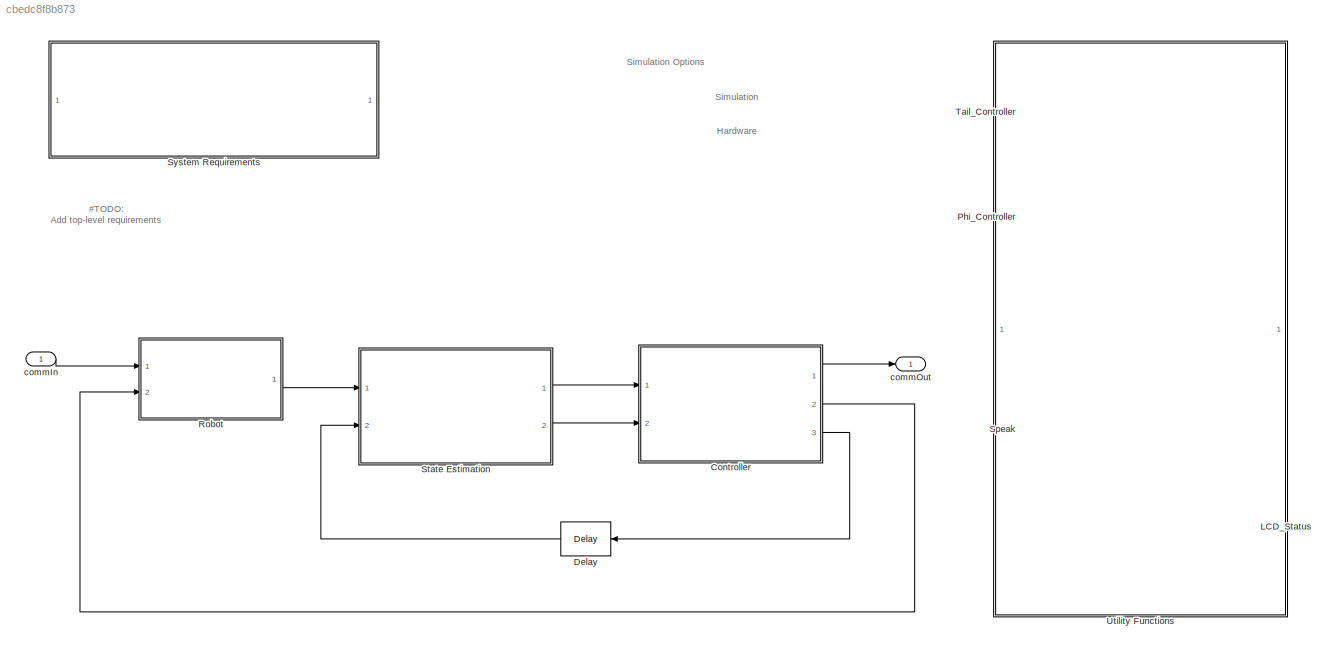
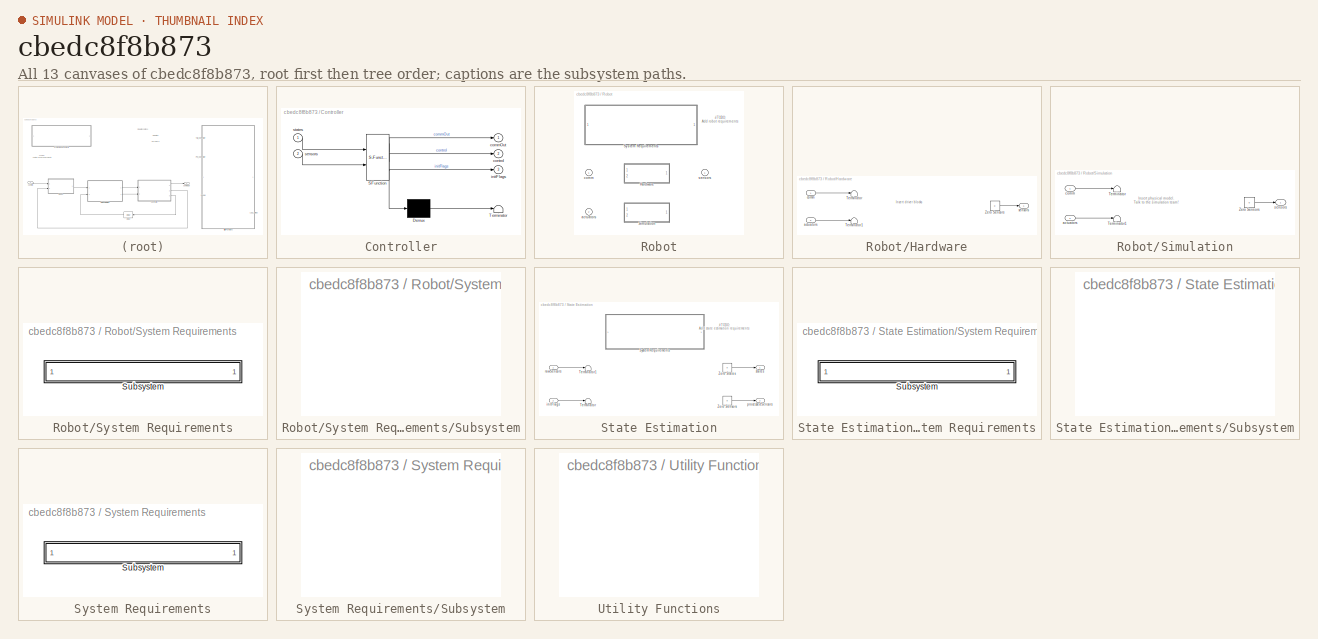
[diagram: thumbnail index - all 13 canvases of the model, root first then tree order]
MODEL slx_cbedc8f8b873
KIND model
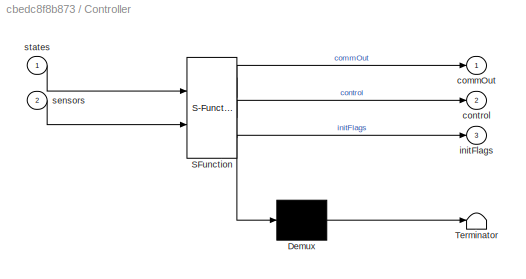
BLOCK [SubSystem] Controller
  ErrorFcn = Stateflow.Translate.translate
  PermitHierarchicalResolution = ExplicitOnly
  Ports = [2, 3]
  RequestExecContextInheritance = off
  SFBlockType = Chart
  TreatAsAtomicUnit = on
BLOCK [Demux] Controller/ Demux 
  Outputs = 1
  Ports = [1, 1]
BLOCK [S-Function] Controller/ SFunction 
  EnableBusSupport = on
  FunctionName = sf_sfun
  PortCounts = [2 4]
  Ports = [2, 4]
  Tag = Stateflow S-Function RobotTemplate 5
BLOCK [Terminator] Controller/ Terminator 
BLOCK [Outport] Controller/commOut
  IconDisplay = Port number
BLOCK [Outport] Controller/control
  IconDisplay = Port number
  Port = 2
BLOCK [Outport] Controller/initFlags
  IconDisplay = Port number
  Port = 3
BLOCK [Inport] Controller/sensors
  IconDisplay = Port number
  Port = 2
BLOCK [Inport] Controller/states
  IconDisplay = Port number
BLOCK [Delay] Delay
  AttributesFormatString = Removes algebraic loop
  DelayLength = 1
  InputPortMap = u0
  Ports = [1, 1]
  SampleTime = tModel
BLOCK [Reference] LCD_Status  REF=NXTFcns/LCD_Status
  Commented = on
  Ports = [0, 0, 0, 1]
  SourceBlock = NXTFcns/LCD_Status
  SourceType = SubSystem
BLOCK [Reference] Phi_Controller  REF=ControllersFcns/Phi_Controller
  Commented = on
  Ports = [0, 0, 0, 1]
  SourceBlock = ControllersFcns/Phi_Controller
  SourceType = SubSystem
BLOCK [SubSystem] Robot
  OverrideUsingVariant = SimulationVar
  Ports = [2, 1]
  RequestExecContextInheritance = off
  Variant = on
  VariantControl = Variant1
BLOCK [SubSystem] Robot/Hardware
  Ports = [2, 1]
  RequestExecContextInheritance = off
  VariantControl = HardwareVar
BLOCK [Terminator] Robot/Hardware/Terminator
BLOCK [Terminator] Robot/Hardware/Terminator1
BLOCK [Constant] Robot/Hardware/Zero Sensors
  OutDataTypeStr = Bus: SensorsBus
  Value = 0
BLOCK [Inport] Robot/Hardware/actuators
  IconDisplay = Port number
  Port = 2
BLOCK [Inport] Robot/Hardware/comm
  IconDisplay = Port number
BLOCK [Outport] Robot/Hardware/sensors
  IconDisplay = Port number
BLOCK [SubSystem] Robot/Simulation
  Ports = [2, 1]
  RequestExecContextInheritance = off
  VariantControl = SimulationVar
BLOCK [Terminator] Robot/Simulation/Terminator
BLOCK [Terminator] Robot/Simulation/Terminator1
BLOCK [Constant] Robot/Simulation/Zero Sensors
  OutDataTypeStr = Bus: SensorsBus
  Value = 0
BLOCK [Inport] Robot/Simulation/actuators
  IconDisplay = Port number
  Port = 2
BLOCK [Inport] Robot/Simulation/comm
  IconDisplay = Port number
BLOCK [Outport] Robot/Simulation/sensors
  IconDisplay = Port number
BLOCK [SubSystem] Robot/System Requirements
  CopyFcn = rmidispblock('create',gcbh)
  DeleteFcn = rmidispblock('delete',gcbh)
  LoadFcn = rmidispblock('load',gcbh)
  ModelCloseFcn = rmidispblock('close',gcbh)
  MoveFcn = rmidispblock('move',gcbh)
  OpenFcn = rmidispblock('open',gcbh)
  Ports = []
  PostSaveFcn = rmidispblock('open',gcbh)
  PreSaveFcn = rmidispblock('close',gcbh)
  RequestExecContextInheritance = off
  VariantControl = Variant
BLOCK [SubSystem] Robot/System Requirements/Subsystem
  OpenFcn = rmidispblock('openReq',gcbh);
  Ports = []
  RequestExecContextInheritance = off
BLOCK [Inport] Robot/actuators
  IconDisplay = Port number
  OutDataTypeStr = Bus: ControlBus
  Port = 2
BLOCK [Inport] Robot/comm
  IconDisplay = Port number
  OutDataTypeStr = Enum: Comm
BLOCK [Outport] Robot/sensors
  IconDisplay = Port number
  OutDataTypeStr = Bus: SensorsBus
BLOCK [Reference] Speak  REF=NXTFcns/Speak
  Commented = on
  Ports = [0, 0, 0, 1]
  SourceBlock = NXTFcns/Speak
  SourceType = SubSystem
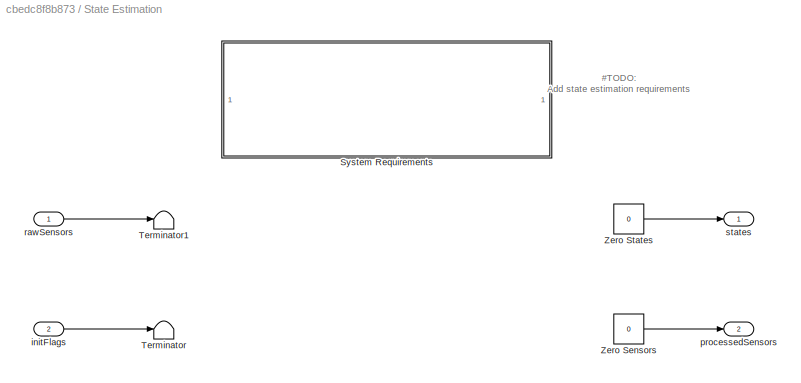
BLOCK [SubSystem] State Estimation
  Ports = [2, 2]
  RequestExecContextInheritance = off
BLOCK [SubSystem] State Estimation/System Requirements
  CopyFcn = rmidispblock('create',gcbh)
  DeleteFcn = rmidispblock('delete',gcbh)
  LoadFcn = rmidispblock('load',gcbh)
  ModelCloseFcn = rmidispblock('close',gcbh)
  MoveFcn = rmidispblock('move',gcbh)
  OpenFcn = rmidispblock('open',gcbh)
  Ports = []
  PostSaveFcn = rmidispblock('open',gcbh)
  PreSaveFcn = rmidispblock('close',gcbh)
  RequestExecContextInheritance = off
BLOCK [SubSystem] State Estimation/System Requirements/Subsystem
  OpenFcn = rmidispblock('openReq',gcbh);
  Ports = []
  RequestExecContextInheritance = off
BLOCK [Terminator] State Estimation/Terminator
BLOCK [Terminator] State Estimation/Terminator1
BLOCK [Constant] State Estimation/Zero Sensors
  OutDataTypeStr = Bus: SensorsBus
  Value = 0
BLOCK [Constant] State Estimation/Zero States
  OutDataTypeStr = Bus: StatesBus
  Value = 0
BLOCK [Inport] State Estimation/initFlags
  IconDisplay = Port number
  OutDataTypeStr = Bus: InitBus
  Port = 2
BLOCK [Outport] State Estimation/processedSensors
  IconDisplay = Port number
  OutDataTypeStr = Bus: SensorsBus
  Port = 2
BLOCK [Inport] State Estimation/rawSensors
  IconDisplay = Port number
  OutDataTypeStr = Bus: SensorsBus
BLOCK [Outport] State Estimation/states
  IconDisplay = Port number
  OutDataTypeStr = Bus: StatesBus
BLOCK [SubSystem] System Requirements
  CopyFcn = rmidispblock('create',gcbh)
  DeleteFcn = rmidispblock('delete',gcbh)
  LoadFcn = rmidispblock('load',gcbh)
  ModelCloseFcn = rmidispblock('close',gcbh)
  MoveFcn = rmidispblock('move',gcbh)
  OpenFcn = rmidispblock('open',gcbh)
  Ports = []
  PostSaveFcn = rmidispblock('open',gcbh)
  PreSaveFcn = rmidispblock('close',gcbh)
  RequestExecContextInheritance = off
BLOCK [SubSystem] System Requirements/Subsystem
  OpenFcn = rmidispblock('openReq',gcbh);
  Ports = []
  RequestExecContextInheritance = off
BLOCK [Reference] Tail_Controller  REF=ControllersFcns/Tail_Controller
  Commented = on
  Ports = [0, 0, 0, 1]
  SourceBlock = ControllersFcns/Tail_Controller
  SourceType = SubSystem
BLOCK [SubSystem] Utility Functions
  Commented = on
  Ports = []
  RequestExecContextInheritance = off
BLOCK [Inport] commIn
  IconDisplay = Port number
  OutDataTypeStr = Enum: Comm
BLOCK [Outport] commOut
  IconDisplay = Port number
  OutDataTypeStr = Enum: Comm
ANNOTATION (root): #TODO: Add top-level requirements
ANNOTATION (root): Simulation Options
ANNOTATION (root): Hardware
ANNOTATION (root): Simulation
ANNOTATION Robot: #TODO: Add robot requirements
ANNOTATION Robot/Hardware: Insert driver blocks
ANNOTATION Robot/Simulation: Insert physical model. Talk to the simulation team!
ANNOTATION State Estimation: #TODO: Add state estimation requirements
LINE Controller:1 -> commOut:1
LINE Controller:2 -> Robot:2
LINE Controller:3 -> Delay:1
LINE Delay:1 -> State Estimation:2
LINE Robot/Hardware/Zero Sensors:1 -> Robot/Hardware/sensors:1
LINE Robot/Hardware/actuators:1 -> Robot/Hardware/Terminator1:1
LINE Robot/Hardware/comm:1 -> Robot/Hardware/Terminator:1
LINE Robot/Simulation/Zero Sensors:1 -> Robot/Simulation/sensors:1
LINE Robot/Simulation/actuators:1 -> Robot/Simulation/Terminator1:1
LINE Robot/Simulation/comm:1 -> Robot/Simulation/Terminator:1
LINE Robot:1 -> State Estimation:1
LINE State Estimation/Zero Sensors:1 -> State Estimation/processedSensors:1
LINE State Estimation/Zero States:1 -> State Estimation/states:1
LINE State Estimation/initFlags:1 -> State Estimation/Terminator:1
LINE State Estimation/rawSensors:1 -> State Estimation/Terminator1:1
LINE State Estimation:1 -> Controller:1
LINE State Estimation:2 -> Controller:2
LINE commIn:1 -> Robot:1
CHART Controller states=3 transitions=3
  STATE_LABEL 'initBuses'
  STATE_LABEL '% Control bus\n{\ncontrol.leftPWM = int8(0);\ncontrol.rightPWM = int8(0);\n}'
  STATE_LABEL '% Initialization flags\n{\ninitFlags.encoder = false;\ninitFlags.gyro = false; \n}'
  STATE_LABEL 'DefaultState\n% Add control logic here.'
  STATE_LABEL '<!DOCTYPE HTML PUBLIC "-//W3C//DTD HTML 4.0//EN" "http://www.w3.org/TR/REC-html40/strict.dtd">\n<html><head><meta name="qrichtext" content="1" /><style type="text/css">\np, li { white-space: pre-wrap; }\n</style></head><body style=" font-family:\'Helvetica\'; font-size:12px; font-weight:400; font-style:normal;">\n<p style=" margin-top:0px; margin-bottom:0px; margin-left:0px; margin-right:0px; -qt-block-...<+680ch>'
